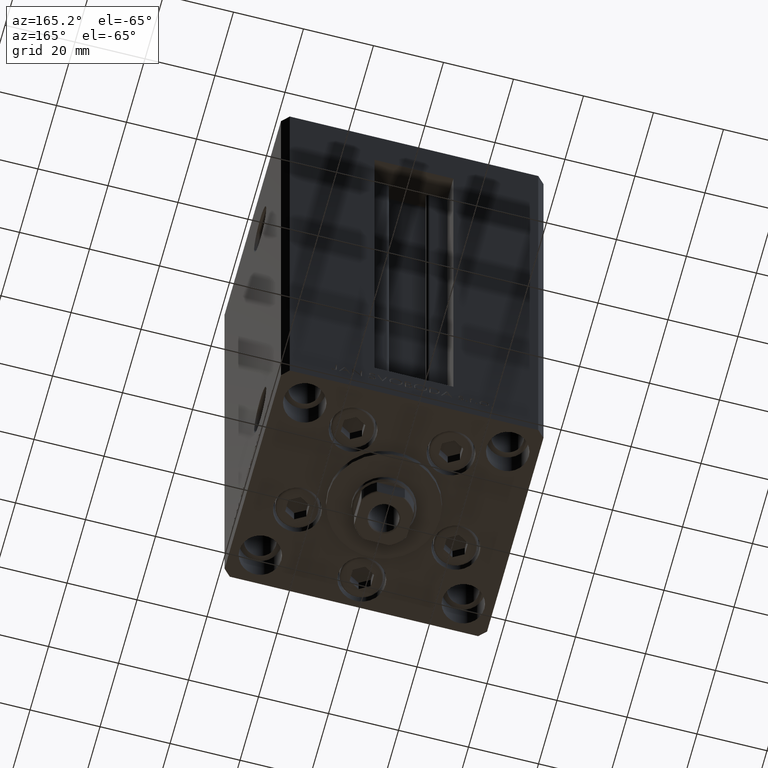
[diagram: clean part render]
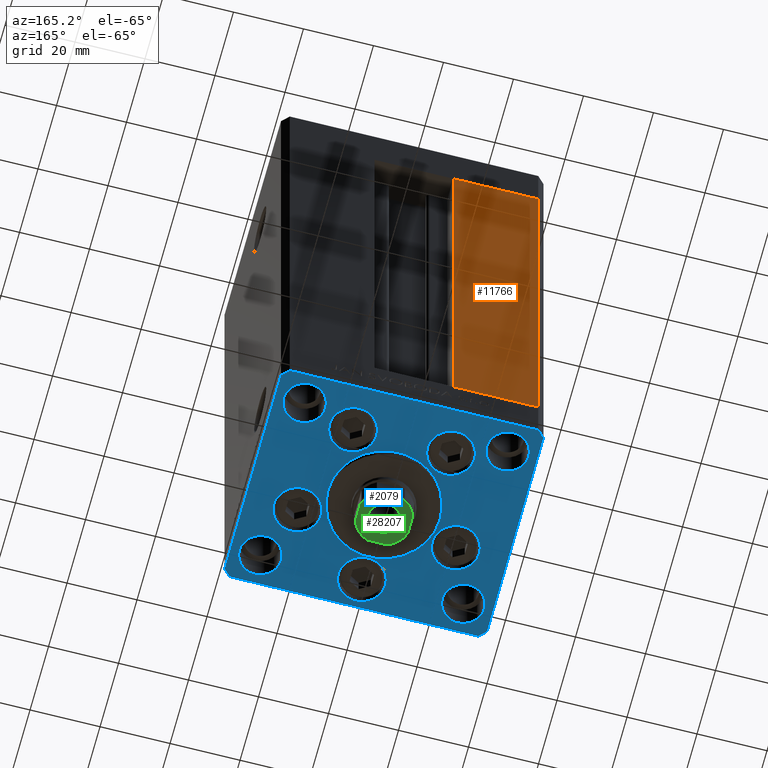
[diagram: same view with three faces highlighted in distinct colors, each labeled with its STEP entity id]
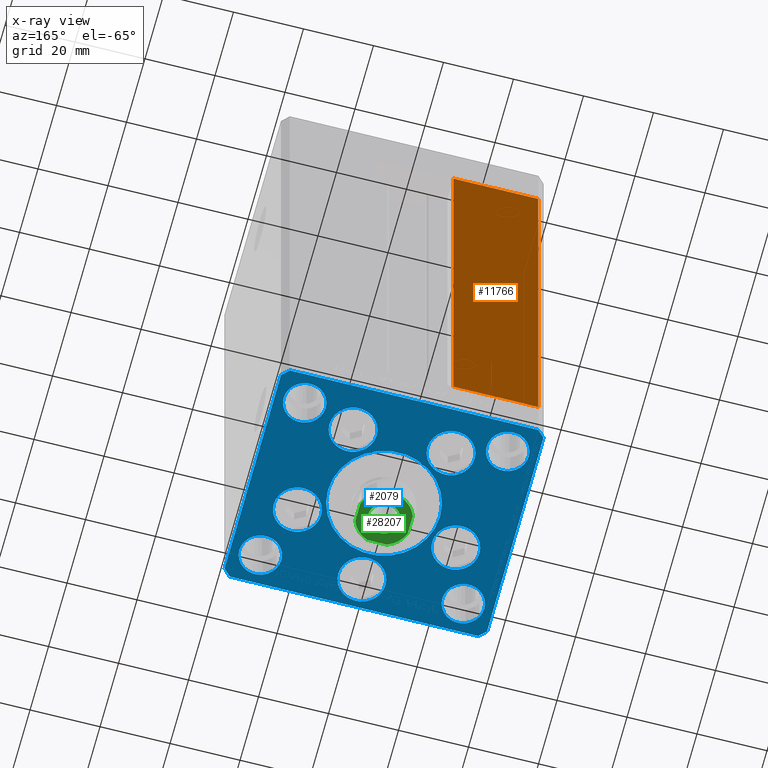
[diagram: x-ray of the same camera — body ghosted, the three highlighted faces saturated]
A machine part, auxiliary view with three faces highlighted in distinct colors.
The next image is the same camera in x-ray (body ghosted, the three faces saturated) — at least one of them is partly hidden behind the body in this view.
Their STEP definitions:

[orange] entity #11766 — the highlighted planar face has unit normal (0, -1, 0).
#976 = CARTESIAN_POINT ( 'NONE',  ( -35.50000000000000000, 32.49999999999999289, 136.0000000000000000 ) ) ;
#1510 = VECTOR ( 'NONE', #20332, 1000.000000000000000 ) ;
#3437 = DIRECTION ( 'NONE',  ( 0.000000000000000000, -0.000000000000000000, -1.000000000000000000 ) ) ;
#3585 = EDGE_CURVE ( 'NONE', #30060, #14903, #32179, .T. ) ;
#3917 = FACE_OUTER_BOUND ( 'NONE', #12458, .T. ) ;
#4185 = CARTESIAN_POINT ( 'NONE',  ( -11.25000000000000178, 32.49999999999999289, 0.000000000000000000 ) ) ;
#4713 = ORIENTED_EDGE ( 'NONE', *, *, #13717, .F. ) ;
#7436 = DIRECTION ( 'NONE',  ( -1.000000000000000000, 0.000000000000000000, 0.000000000000000000 ) ) ;
#7785 = AXIS2_PLACEMENT_3D ( 'NONE', #49284, #45551, #3437 ) ;
#8686 = VECTOR ( 'NONE', #7436, 1000.000000000000000 ) ;
#9582 = CARTESIAN_POINT ( 'NONE',  ( -35.50000000000000000, 32.49999999999999289, 136.0000000000000000 ) ) ;
#10420 = EDGE_CURVE ( 'NONE', #33427, #14903, #33541, .T. ) ;
#11766 = ADVANCED_FACE ( 'NONE', ( #3917 ), #22394, .F. ) ;
#12458 = EDGE_LOOP ( 'NONE', ( #32175, #17046, #20779, #4713 ) ) ;
#13694 = DIRECTION ( 'NONE',  ( -0.000000000000000000, -0.000000000000000000, 1.000000000000000000 ) ) ;
#13717 = EDGE_CURVE ( 'NONE', #33427, #18927, #43742, .T. ) ;
#14903 = VERTEX_POINT ( 'NONE', #49132 ) ;
#17046 = ORIENTED_EDGE ( 'NONE', *, *, #3585, .F. ) ;
#18927 = VERTEX_POINT ( 'NONE', #36374 ) ;
#20332 = DIRECTION ( 'NONE',  ( -0.000000000000000000, -0.000000000000000000, -1.000000000000000000 ) ) ;
#20515 = VECTOR ( 'NONE', #30293, 1000.000000000000000 ) ;
#20779 = ORIENTED_EDGE ( 'NONE', *, *, #40917, .T. ) ;
#22394 = PLANE ( 'NONE',  #7785 ) ;
#30060 = VERTEX_POINT ( 'NONE', #42014 ) ;
#30293 = DIRECTION ( 'NONE',  ( 1.000000000000000000, 0.000000000000000000, 0.000000000000000000 ) ) ;
#30392 = LINE ( 'NONE', #4185, #8686 ) ;
#32175 = ORIENTED_EDGE ( 'NONE', *, *, #10420, .T. ) ;
#32179 = LINE ( 'NONE', #47350, #48881 ) ;
#33427 = VERTEX_POINT ( 'NONE', #976 ) ;
#33541 = LINE ( 'NONE', #48462, #20515 ) ;
#36374 = CARTESIAN_POINT ( 'NONE',  ( -35.50000000000000000, 32.49999999999999289, 0.000000000000000000 ) ) ;
#40917 = EDGE_CURVE ( 'NONE', #30060, #18927, #30392, .T. ) ;
#42014 = CARTESIAN_POINT ( 'NONE',  ( -11.25000000000000178, 32.49999999999999289, 0.000000000000000000 ) ) ;
#43742 = LINE ( 'NONE', #9582, #1510 ) ;
#45551 = DIRECTION ( 'NONE',  ( 0.000000000000000000, -1.000000000000000000, 0.000000000000000000 ) ) ;
#47350 = CARTESIAN_POINT ( 'NONE',  ( -11.25000000000000178, 32.49999999999999289, 0.000000000000000000 ) ) ;
#48462 = CARTESIAN_POINT ( 'NONE',  ( -11.25000000000000178, 32.49999999999999289, 136.0000000000000000 ) ) ;
#48881 = VECTOR ( 'NONE', #13694, 1000.000000000000000 ) ;
#49132 = CARTESIAN_POINT ( 'NONE',  ( -11.25000000000000178, 32.49999999999999289, 136.0000000000000000 ) ) ;
#49284 = CARTESIAN_POINT ( 'NONE',  ( -11.25000000000000178, 32.49999999999999289, 136.0000000000000000 ) ) ;

[blue] entity #2079 — the highlighted planar face has unit normal (0, 0, -1).
#3 = CARTESIAN_POINT ( 'NONE',  ( -29.37741699796953654, -8.000000000000000000, 0.000000000000000000 ) ) ;
#57 = EDGE_CURVE ( 'NONE', #30568, #45487, #12143, .T. ) ;
#137 = CARTESIAN_POINT ( 'NONE',  ( -29.00000000000000000, -23.99999999999999645, 0.000000000000000000 ) ) ;
#766 = CARTESIAN_POINT ( 'NONE',  ( -35.50000000000000711, 32.49999999999997868, 0.000000000000000000 ) ) ;
#913 = VERTEX_POINT ( 'NONE', #26544 ) ;
#1093 = ORIENTED_EDGE ( 'NONE', *, *, #9854, .F. ) ;
#1185 = EDGE_LOOP ( 'NONE', ( #19488, #24297 ) ) ;
#1286 = VERTEX_POINT ( 'NONE', #33705 ) ;
#1288 = VERTEX_POINT ( 'NONE', #18974 ) ;
#1305 = EDGE_CURVE ( 'NONE', #23541, #7109, #32872, .T. ) ;
#1608 = VERTEX_POINT ( 'NONE', #35088 ) ;
#1704 = EDGE_LOOP ( 'NONE', ( #16156, #4351 ) ) ;
#1811 = DIRECTION ( 'NONE',  ( 0.000000000000000000, 0.000000000000000000, 1.000000000000000000 ) ) ;
#1851 = CIRCLE ( 'NONE', #32893, 6.749999999999999112 ) ;
#1856 = DIRECTION ( 'NONE',  ( 1.000000000000000000, 1.172770800660376149E-15, 0.000000000000000000 ) ) ;
#1914 = EDGE_LOOP ( 'NONE', ( #18090, #2160 ) ) ;
#2079 = ADVANCED_FACE ( 'NONE', ( #2471, #10189, #21672, #48548, #37360, #17414, #29400, #40600, #14406, #33140, #28916 ), #48800, .T. ) ;
#2084 = CARTESIAN_POINT ( 'NONE',  ( 22.62741699796953299, -8.000000000000000000, 0.000000000000000000 ) ) ;
#2152 = ORIENTED_EDGE ( 'NONE', *, *, #19028, .T. ) ;
#2160 = ORIENTED_EDGE ( 'NONE', *, *, #5472, .F. ) ;
#2187 = LINE ( 'NONE', #17141, #33506 ) ;
#2193 = CARTESIAN_POINT ( 'NONE',  ( 6.750000000001552536, -24.00000000000001066, 0.000000000000000000 ) ) ;
#2401 = VERTEX_POINT ( 'NONE', #18535 ) ;
#2471 = FACE_BOUND ( 'NONE', #42704, .T. ) ;
#2960 = CARTESIAN_POINT ( 'NONE',  ( 0.000000000000000000, 0.000000000000000000, 0.000000000000000000 ) ) ;
#3112 = VECTOR ( 'NONE', #22380, 1000.000000000000000 ) ;
#3604 = ORIENTED_EDGE ( 'NONE', *, *, #21358, .F. ) ;
#3610 = VERTEX_POINT ( 'NONE', #40621 ) ;
#3777 = CARTESIAN_POINT ( 'NONE',  ( 29.37741699796954364, -8.000000000000000000, 0.000000000000000000 ) ) ;
#3956 = EDGE_CURVE ( 'NONE', #39484, #2401, #7466, .T. ) ;
#4351 = ORIENTED_EDGE ( 'NONE', *, *, #35870, .F. ) ;
#4483 = EDGE_CURVE ( 'NONE', #10354, #13966, #6681, .T. ) ;
#4797 = EDGE_LOOP ( 'NONE', ( #17139, #26306 ) ) ;
#4833 = CARTESIAN_POINT ( 'NONE',  ( -35.50000000000001421, -32.50000000000000711, 0.000000000000000000 ) ) ;
#4930 = AXIS2_PLACEMENT_3D ( 'NONE', #6645, #6886, #40810 ) ;
#5333 = DIRECTION ( 'NONE',  ( 1.000000000000000000, 0.000000000000000000, 0.000000000000000000 ) ) ;
#5472 = EDGE_CURVE ( 'NONE', #36441, #23390, #45723, .T. ) ;
#5612 = EDGE_LOOP ( 'NONE', ( #3604, #9447 ) ) ;
#5635 = ORIENTED_EDGE ( 'NONE', *, *, #3956, .F. ) ;
#6025 = AXIS2_PLACEMENT_3D ( 'NONE', #49278, #49034, #15128 ) ;
#6147 = CARTESIAN_POINT ( 'NONE',  ( -20.74106857963324302, 19.50000000000000000, 0.000000000000000000 ) ) ;
#6396 = DIRECTION ( 'NONE',  ( 0.000000000000000000, 0.000000000000000000, 1.000000000000000000 ) ) ;
#6645 = CARTESIAN_POINT ( 'NONE',  ( 0.000000000000000000, -6.938893903907228378E-15, 0.000000000000000000 ) ) ;
#6681 = CIRCLE ( 'NONE', #36955, 5.999999999999998224 ) ;
#6762 = EDGE_LOOP ( 'NONE', ( #5635, #18833 ) ) ;
#6886 = DIRECTION ( 'NONE',  ( 0.000000000000000000, 0.000000000000000000, 1.000000000000000000 ) ) ;
#7109 = VERTEX_POINT ( 'NONE', #22088 ) ;
#7320 = AXIS2_PLACEMENT_3D ( 'NONE', #47599, #24957, #43399 ) ;
#7324 = CARTESIAN_POINT ( 'NONE',  ( 29.00000000000000355, -23.99999999999999645, 0.000000000000000000 ) ) ;
#7380 = CARTESIAN_POINT ( 'NONE',  ( -37.50000000000000000, -30.50000000000004263, 0.000000000000000000 ) ) ;
#7466 = CIRCLE ( 'NONE', #32972, 6.750000000000009770 ) ;
#7668 = CIRCLE ( 'NONE', #34741, 6.750000000000000000 ) ;
#7795 = DIRECTION ( 'NONE',  ( 0.000000000000000000, 0.000000000000000000, 1.000000000000000000 ) ) ;
#8565 = CIRCLE ( 'NONE', #46785, 6.000000000000001776 ) ;
#8876 = VERTEX_POINT ( 'NONE', #35715 ) ;
#9331 = DIRECTION ( 'NONE',  ( 0.000000000000000000, 0.000000000000000000, 1.000000000000000000 ) ) ;
#9434 = DIRECTION ( 'NONE',  ( 0.000000000000000000, 0.000000000000000000, 1.000000000000000000 ) ) ;
#9447 = ORIENTED_EDGE ( 'NONE', *, *, #13005, .F. ) ;
#9522 = ORIENTED_EDGE ( 'NONE', *, *, #31023, .T. ) ;
#9587 = VERTEX_POINT ( 'NONE', #17741 ) ;
#9591 = EDGE_CURVE ( 'NONE', #8876, #9951, #18126, .T. ) ;
#9666 = EDGE_LOOP ( 'NONE', ( #39569, #36178 ) ) ;
#9854 = EDGE_CURVE ( 'NONE', #1608, #12509, #27687, .T. ) ;
#9951 = VERTEX_POINT ( 'NONE', #19180 ) ;
#10152 = CARTESIAN_POINT ( 'NONE',  ( -22.62741699796953299, -8.000000000000000000, 0.000000000000000000 ) ) ;
#10189 = FACE_BOUND ( 'NONE', #1704, .T. ) ;
#10354 = VERTEX_POINT ( 'NONE', #26811 ) ;
#11006 = AXIS2_PLACEMENT_3D ( 'NONE', #11790, #7795, #27021 ) ;
#11567 = CARTESIAN_POINT ( 'NONE',  ( 35.50000000000000000, 32.49999999999999289, 0.000000000000000000 ) ) ;
#11638 = DIRECTION ( 'NONE',  ( 0.000000000000000000, 0.000000000000000000, 1.000000000000000000 ) ) ;
#11674 = EDGE_LOOP ( 'NONE', ( #38031, #35492 ) ) ;
#11707 = EDGE_CURVE ( 'NONE', #7109, #23541, #8565, .T. ) ;
#11738 = CARTESIAN_POINT ( 'NONE',  ( -29.00000000000000000, 24.00000000000000711, 0.000000000000000000 ) ) ;
#11761 = VERTEX_POINT ( 'NONE', #18889 ) ;
#11790 = CARTESIAN_POINT ( 'NONE',  ( -13.99106857963324124, 19.50000000000000000, 0.000000000000000000 ) ) ;
#12143 = CIRCLE ( 'NONE', #18508, 6.749999999999997335 ) ;
#12509 = VERTEX_POINT ( 'NONE', #38452 ) ;
#12596 = CIRCLE ( 'NONE', #48405, 6.750000000001552536 ) ;
#12698 = ORIENTED_EDGE ( 'NONE', *, *, #48429, .T. ) ;
#13005 = EDGE_CURVE ( 'NONE', #14530, #32529, #12596, .T. ) ;
#13100 = AXIS2_PLACEMENT_3D ( 'NONE', #10152, #18361, #18115 ) ;
#13138 = EDGE_CURVE ( 'NONE', #35789, #18099, #37271, .T. ) ;
#13767 = CARTESIAN_POINT ( 'NONE',  ( 35.50000000000001421, -32.49999999999992184, 0.000000000000000000 ) ) ;
#13966 = VERTEX_POINT ( 'NONE', #43683 ) ;
#13994 = DIRECTION ( 'NONE',  ( 1.000000000000000000, 0.000000000000000000, 0.000000000000000000 ) ) ;
#14072 = DIRECTION ( 'NONE',  ( 1.000000000000000000, 0.000000000000000000, 0.000000000000000000 ) ) ;
#14087 = CARTESIAN_POINT ( 'NONE',  ( -7.241068579633241242, 19.50000000000000000, 0.000000000000000000 ) ) ;
#14406 = FACE_BOUND ( 'NONE', #9666, .T. ) ;
#14530 = VERTEX_POINT ( 'NONE', #19662 ) ;
#15059 = CARTESIAN_POINT ( 'NONE',  ( -37.50000000000001421, 30.50000000000000000, 0.000000000000000000 ) ) ;
#15128 = DIRECTION ( 'NONE',  ( 1.000000000000000000, 0.000000000000000000, 0.000000000000000000 ) ) ;
#15324 = DIRECTION ( 'NONE',  ( 0.000000000000000000, 0.000000000000000000, 1.000000000000000000 ) ) ;
#15811 = VERTEX_POINT ( 'NONE', #44153 ) ;
#15812 = DIRECTION ( 'NONE',  ( 1.000000000000000000, 0.000000000000000000, 0.000000000000000000 ) ) ;
#15884 = CARTESIAN_POINT ( 'NONE',  ( 29.00000000000000355, -23.99999999999999645, 0.000000000000000000 ) ) ;
#16156 = ORIENTED_EDGE ( 'NONE', *, *, #13138, .F. ) ;
#16544 = DIRECTION ( 'NONE',  ( 0.000000000000000000, 0.000000000000000000, 1.000000000000000000 ) ) ;
#16872 = ORIENTED_EDGE ( 'NONE', *, *, #30080, .T. ) ;
#17139 = ORIENTED_EDGE ( 'NONE', *, *, #4483, .F. ) ;
#17141 = CARTESIAN_POINT ( 'NONE',  ( 35.50000000000000000, 32.49999999999999289, 0.000000000000000000 ) ) ;
#17414 = FACE_BOUND ( 'NONE', #1914, .T. ) ;
#17741 = CARTESIAN_POINT ( 'NONE',  ( -35.50000000000001421, -32.50000000000000711, 0.000000000000000000 ) ) ;
#17822 = CARTESIAN_POINT ( 'NONE',  ( 13.99106857963324124, 19.50000000000000000, 0.000000000000000000 ) ) ;
#18090 = ORIENTED_EDGE ( 'NONE', *, *, #28223, .F. ) ;
#18099 = VERTEX_POINT ( 'NONE', #6147 ) ;
#18115 = DIRECTION ( 'NONE',  ( 1.000000000000000000, 0.000000000000000000, 0.000000000000000000 ) ) ;
#18126 = CIRCLE ( 'NONE', #24511, 16.00000000000000355 ) ;
#18185 = VECTOR ( 'NONE', #22612, 1000.000000000000000 ) ;
#18231 = DIRECTION ( 'NONE',  ( 1.000000000000000000, 0.000000000000000000, 0.000000000000000000 ) ) ;
#18361 = DIRECTION ( 'NONE',  ( 0.000000000000000000, 0.000000000000000000, 1.000000000000000000 ) ) ;
#18437 = EDGE_CURVE ( 'NONE', #11761, #913, #29807, .T. ) ;
#18508 = AXIS2_PLACEMENT_3D ( 'NONE', #39010, #34793, #15812 ) ;
#18535 = CARTESIAN_POINT ( 'NONE',  ( 15.87741699796952410, -8.000000000000000000, 0.000000000000000000 ) ) ;
#18833 = ORIENTED_EDGE ( 'NONE', *, *, #36005, .F. ) ;
#18889 = CARTESIAN_POINT ( 'NONE',  ( -37.50000000000001421, 30.50000000000000000, 0.000000000000000000 ) ) ;
#18974 = CARTESIAN_POINT ( 'NONE',  ( 37.50000000000000711, 30.50000000000001421, 0.000000000000000000 ) ) ;
#19028 = EDGE_CURVE ( 'NONE', #1288, #46202, #30617, .T. ) ;
#19180 = CARTESIAN_POINT ( 'NONE',  ( -16.00000000000000355, -6.938893903907228378E-15, 0.000000000000000000 ) ) ;
#19319 = DIRECTION ( 'NONE',  ( 0.000000000000000000, 0.000000000000000000, 1.000000000000000000 ) ) ;
#19488 = ORIENTED_EDGE ( 'NONE', *, *, #57, .F. ) ;
#19662 = CARTESIAN_POINT ( 'NONE',  ( -6.750000000001552536, -24.00000000000001066, 0.000000000000000000 ) ) ;
#19738 = CARTESIAN_POINT ( 'NONE',  ( -29.00000000000000000, 24.00000000000000711, 0.000000000000000000 ) ) ;
#20434 = AXIS2_PLACEMENT_3D ( 'NONE', #2084, #16544, #39238 ) ;
#20526 = EDGE_CURVE ( 'NONE', #1286, #3610, #21619, .T. ) ;
#20662 = EDGE_LOOP ( 'NONE', ( #31621, #16872, #26299, #36362, #2152, #12698, #9522, #21549 ) ) ;
#20668 = CIRCLE ( 'NONE', #49319, 6.000000000000001776 ) ;
#21358 = EDGE_CURVE ( 'NONE', #32529, #14530, #21656, .T. ) ;
#21549 = ORIENTED_EDGE ( 'NONE', *, *, #18437, .T. ) ;
#21619 = CIRCLE ( 'NONE', #27992, 6.000000000000001776 ) ;
#21656 = CIRCLE ( 'NONE', #7320, 6.750000000001552536 ) ;
#21672 = FACE_BOUND ( 'NONE', #1185, .T. ) ;
#21881 = CARTESIAN_POINT ( 'NONE',  ( 22.62741699796953299, -8.000000000000000000, 0.000000000000000000 ) ) ;
#22042 = DIRECTION ( 'NONE',  ( 1.000000000000000000, 0.000000000000000000, 0.000000000000000000 ) ) ;
#22088 = CARTESIAN_POINT ( 'NONE',  ( -35.00000000000000000, 24.00000000000000711, 0.000000000000000000 ) ) ;
#22380 = DIRECTION ( 'NONE',  ( 0.000000000000000000, 1.000000000000000000, 0.000000000000000000 ) ) ;
#22386 = LINE ( 'NONE', #38073, #46998 ) ;
#22562 = DIRECTION ( 'NONE',  ( 1.000000000000000000, 0.000000000000000000, 0.000000000000000000 ) ) ;
#22569 = DIRECTION ( 'NONE',  ( 0.000000000000000000, 0.000000000000000000, 1.000000000000000000 ) ) ;
#22612 = DIRECTION ( 'NONE',  ( 0.7071067811865512365, -0.7071067811865439090, 0.000000000000000000 ) ) ;
#22627 = DIRECTION ( 'NONE',  ( 1.000000000000000000, 0.000000000000000000, 0.000000000000000000 ) ) ;
#23390 = VERTEX_POINT ( 'NONE', #43474 ) ;
#23541 = VERTEX_POINT ( 'NONE', #45912 ) ;
#23547 = DIRECTION ( 'NONE',  ( 1.000000000000000000, 0.000000000000000000, 0.000000000000000000 ) ) ;
#24297 = ORIENTED_EDGE ( 'NONE', *, *, #46836, .F. ) ;
#24511 = AXIS2_PLACEMENT_3D ( 'NONE', #44172, #1811, #13994 ) ;
#24583 = EDGE_LOOP ( 'NONE', ( #1093, #39161 ) ) ;
#24655 = AXIS2_PLACEMENT_3D ( 'NONE', #7324, #41739, #22562 ) ;
#24680 = AXIS2_PLACEMENT_3D ( 'NONE', #17822, #22569, #14072 ) ;
#24957 = DIRECTION ( 'NONE',  ( 0.000000000000000000, 0.000000000000000000, 1.000000000000000000 ) ) ;
#26278 = EDGE_CURVE ( 'NONE', #9951, #8876, #47133, .T. ) ;
#26299 = ORIENTED_EDGE ( 'NONE', *, *, #47931, .T. ) ;
#26306 = ORIENTED_EDGE ( 'NONE', *, *, #42203, .F. ) ;
#26325 = VECTOR ( 'NONE', #41256, 1000.000000000000000 ) ;
#26387 = CARTESIAN_POINT ( 'NONE',  ( 37.50000000000000711, 30.50000000000001421, 0.000000000000000000 ) ) ;
#26544 = CARTESIAN_POINT ( 'NONE',  ( -37.50000000000000000, -30.50000000000004263, 0.000000000000000000 ) ) ;
#26811 = CARTESIAN_POINT ( 'NONE',  ( 35.00000000000000000, -23.99999999999999645, 0.000000000000000000 ) ) ;
#26916 = AXIS2_PLACEMENT_3D ( 'NONE', #48048, #9434, #34152 ) ;
#27021 = DIRECTION ( 'NONE',  ( 1.000000000000000000, 0.000000000000000000, 0.000000000000000000 ) ) ;
#27687 = CIRCLE ( 'NONE', #26916, 6.000000000000001776 ) ;
#27781 = CARTESIAN_POINT ( 'NONE',  ( 7.241068579633242130, 19.50000000000000000, 0.000000000000000000 ) ) ;
#27992 = AXIS2_PLACEMENT_3D ( 'NONE', #137, #15324, #5333 ) ;
#28223 = EDGE_CURVE ( 'NONE', #23390, #36441, #1851, .T. ) ;
#28530 = LINE ( 'NONE', #4833, #48049 ) ;
#28542 = CARTESIAN_POINT ( 'NONE',  ( -22.62741699796953299, -8.000000000000000000, 0.000000000000000000 ) ) ;
#28916 = FACE_OUTER_BOUND ( 'NONE', #20662, .T. ) ;
#29400 = FACE_BOUND ( 'NONE', #24583, .T. ) ;
#29733 = AXIS2_PLACEMENT_3D ( 'NONE', #2960, #44831, #48306 ) ;
#29807 = LINE ( 'NONE', #15059, #26325 ) ;
#30080 = EDGE_CURVE ( 'NONE', #9587, #39251, #28530, .T. ) ;
#30568 = VERTEX_POINT ( 'NONE', #39380 ) ;
#30617 = LINE ( 'NONE', #26387, #46212 ) ;
#31023 = EDGE_CURVE ( 'NONE', #43777, #11761, #48746, .T. ) ;
#31055 = CIRCLE ( 'NONE', #24680, 6.749999999999997335 ) ;
#31133 = DIRECTION ( 'NONE',  ( 0.000000000000000000, 0.000000000000000000, 1.000000000000000000 ) ) ;
#31534 = CIRCLE ( 'NONE', #6025, 6.000000000000001776 ) ;
#31621 = ORIENTED_EDGE ( 'NONE', *, *, #43246, .T. ) ;
#31712 = DIRECTION ( 'NONE',  ( 0.000000000000000000, 0.000000000000000000, 1.000000000000000000 ) ) ;
#32529 = VERTEX_POINT ( 'NONE', #2193 ) ;
#32773 = DIRECTION ( 'NONE',  ( 0.000000000000000000, 0.000000000000000000, 1.000000000000000000 ) ) ;
#32872 = CIRCLE ( 'NONE', #44807, 6.000000000000001776 ) ;
#32893 = AXIS2_PLACEMENT_3D ( 'NONE', #28542, #9331, #47693 ) ;
#32972 = AXIS2_PLACEMENT_3D ( 'NONE', #21881, #6396, #49007 ) ;
#33140 = FACE_BOUND ( 'NONE', #4797, .T. ) ;
#33506 = VECTOR ( 'NONE', #47781, 1000.000000000000000 ) ;
#33705 = CARTESIAN_POINT ( 'NONE',  ( -35.00000000000000000, -23.99999999999999645, 0.000000000000000000 ) ) ;
#34152 = DIRECTION ( 'NONE',  ( 1.000000000000000000, 0.000000000000000000, 0.000000000000000000 ) ) ;
#34741 = AXIS2_PLACEMENT_3D ( 'NONE', #38509, #19319, #23547 ) ;
#34793 = DIRECTION ( 'NONE',  ( 0.000000000000000000, 0.000000000000000000, 1.000000000000000000 ) ) ;
#34949 = DIRECTION ( 'NONE',  ( 1.000000000000000000, 0.000000000000000000, 0.000000000000000000 ) ) ;
#35088 = CARTESIAN_POINT ( 'NONE',  ( 35.00000000000000000, 24.00000000000000355, 0.000000000000000000 ) ) ;
#35387 = EDGE_CURVE ( 'NONE', #12509, #1608, #31534, .T. ) ;
#35492 = ORIENTED_EDGE ( 'NONE', *, *, #11707, .F. ) ;
#35715 = CARTESIAN_POINT ( 'NONE',  ( 16.00000000000000355, -4.979459025271462852E-15, 0.000000000000000000 ) ) ;
#35789 = VERTEX_POINT ( 'NONE', #14087 ) ;
#35870 = EDGE_CURVE ( 'NONE', #18099, #35789, #7668, .T. ) ;
#36005 = EDGE_CURVE ( 'NONE', #2401, #39484, #45075, .T. ) ;
#36178 = ORIENTED_EDGE ( 'NONE', *, *, #20526, .F. ) ;
#36362 = ORIENTED_EDGE ( 'NONE', *, *, #40118, .T. ) ;
#36441 = VERTEX_POINT ( 'NONE', #3 ) ;
#36955 = AXIS2_PLACEMENT_3D ( 'NONE', #15884, #31133, #42581 ) ;
#37271 = CIRCLE ( 'NONE', #11006, 6.750000000000000000 ) ;
#37302 = DIRECTION ( 'NONE',  ( -0.7071067811865524577, -0.7071067811865426878, 0.000000000000000000 ) ) ;
#37360 = FACE_BOUND ( 'NONE', #5612, .T. ) ;
#38031 = ORIENTED_EDGE ( 'NONE', *, *, #1305, .F. ) ;
#38073 = CARTESIAN_POINT ( 'NONE',  ( 35.50000000000001421, -32.49999999999992184, 0.000000000000000000 ) ) ;
#38452 = CARTESIAN_POINT ( 'NONE',  ( 23.00000000000000000, 24.00000000000000355, 0.000000000000000000 ) ) ;
#38509 = CARTESIAN_POINT ( 'NONE',  ( -13.99106857963324124, 19.50000000000000000, 0.000000000000000000 ) ) ;
#38565 = DIRECTION ( 'NONE',  ( 0.7071067811865463515, 0.7071067811865487940, 0.000000000000000000 ) ) ;
#39010 = CARTESIAN_POINT ( 'NONE',  ( 13.99106857963324124, 19.50000000000000000, 0.000000000000000000 ) ) ;
#39161 = ORIENTED_EDGE ( 'NONE', *, *, #35387, .F. ) ;
#39238 = DIRECTION ( 'NONE',  ( 1.000000000000000000, 0.000000000000000000, 0.000000000000000000 ) ) ;
#39251 = VERTEX_POINT ( 'NONE', #13767 ) ;
#39380 = CARTESIAN_POINT ( 'NONE',  ( 20.74106857963323947, 19.50000000000000000, 0.000000000000000000 ) ) ;
#39484 = VERTEX_POINT ( 'NONE', #3777 ) ;
#39569 = ORIENTED_EDGE ( 'NONE', *, *, #45076, .F. ) ;
#40118 = EDGE_CURVE ( 'NONE', #15811, #1288, #42302, .T. ) ;
#40138 = VECTOR ( 'NONE', #37302, 1000.000000000000000 ) ;
#40360 = ORIENTED_EDGE ( 'NONE', *, *, #9591, .F. ) ;
#40600 = FACE_BOUND ( 'NONE', #11674, .T. ) ;
#40621 = CARTESIAN_POINT ( 'NONE',  ( -23.00000000000000000, -23.99999999999999645, 0.000000000000000000 ) ) ;
#40810 = DIRECTION ( 'NONE',  ( 1.000000000000000000, 0.000000000000000000, 0.000000000000000000 ) ) ;
#41256 = DIRECTION ( 'NONE',  ( 2.275047181608926165E-16, -1.000000000000000000, 0.000000000000000000 ) ) ;
#41313 = CARTESIAN_POINT ( 'NONE',  ( 37.50000000000000711, -30.49999999999992895, 0.000000000000000000 ) ) ;
#41327 = DIRECTION ( 'NONE',  ( -0.7071067811865524577, 0.7071067811865426878, 0.000000000000000000 ) ) ;
#41471 = CARTESIAN_POINT ( 'NONE',  ( 0.000000000000000000, -24.00000000000001066, 0.000000000000000000 ) ) ;
#41544 = LINE ( 'NONE', #7380, #18185 ) ;
#41739 = DIRECTION ( 'NONE',  ( 0.000000000000000000, 0.000000000000000000, 1.000000000000000000 ) ) ;
#42203 = EDGE_CURVE ( 'NONE', #13966, #10354, #46114, .T. ) ;
#42302 = LINE ( 'NONE', #41313, #3112 ) ;
#42581 = DIRECTION ( 'NONE',  ( 1.000000000000000000, 0.000000000000000000, 0.000000000000000000 ) ) ;
#42704 = EDGE_LOOP ( 'NONE', ( #49016, #40360 ) ) ;
#43246 = EDGE_CURVE ( 'NONE', #913, #9587, #41544, .T. ) ;
#43399 = DIRECTION ( 'NONE',  ( 1.000000000000000000, 0.000000000000000000, 0.000000000000000000 ) ) ;
#43474 = CARTESIAN_POINT ( 'NONE',  ( -15.87741699796953476, -8.000000000000000000, 0.000000000000000000 ) ) ;
#43683 = CARTESIAN_POINT ( 'NONE',  ( 23.00000000000000711, -23.99999999999999645, 0.000000000000000000 ) ) ;
#43777 = VERTEX_POINT ( 'NONE', #766 ) ;
#44153 = CARTESIAN_POINT ( 'NONE',  ( 37.50000000000000711, -30.49999999999992895, 0.000000000000000000 ) ) ;
#44172 = CARTESIAN_POINT ( 'NONE',  ( 0.000000000000000000, -6.938893903907228378E-15, 0.000000000000000000 ) ) ;
#44807 = AXIS2_PLACEMENT_3D ( 'NONE', #11738, #48628, #18231 ) ;
#44831 = DIRECTION ( 'NONE',  ( -0.000000000000000000, 0.000000000000000000, 1.000000000000000000 ) ) ;
#45049 = CARTESIAN_POINT ( 'NONE',  ( -29.00000000000000000, -23.99999999999999645, 0.000000000000000000 ) ) ;
#45075 = CIRCLE ( 'NONE', #20434, 6.750000000000009770 ) ;
#45076 = EDGE_CURVE ( 'NONE', #3610, #1286, #20668, .T. ) ;
#45487 = VERTEX_POINT ( 'NONE', #27781 ) ;
#45723 = CIRCLE ( 'NONE', #13100, 6.749999999999999112 ) ;
#45912 = CARTESIAN_POINT ( 'NONE',  ( -23.00000000000000000, 24.00000000000000711, 0.000000000000000000 ) ) ;
#46114 = CIRCLE ( 'NONE', #24655, 5.999999999999998224 ) ;
#46202 = VERTEX_POINT ( 'NONE', #11567 ) ;
#46212 = VECTOR ( 'NONE', #41327, 1000.000000000000000 ) ;
#46785 = AXIS2_PLACEMENT_3D ( 'NONE', #19738, #31712, #34949 ) ;
#46836 = EDGE_CURVE ( 'NONE', #45487, #30568, #31055, .T. ) ;
#46998 = VECTOR ( 'NONE', #38565, 1000.000000000000000 ) ;
#47133 = CIRCLE ( 'NONE', #4930, 16.00000000000000355 ) ;
#47599 = CARTESIAN_POINT ( 'NONE',  ( 0.000000000000000000, -24.00000000000001066, 0.000000000000000000 ) ) ;
#47693 = DIRECTION ( 'NONE',  ( 1.000000000000000000, 0.000000000000000000, 0.000000000000000000 ) ) ;
#47781 = DIRECTION ( 'NONE',  ( -1.000000000000000000, -1.954618001100627573E-16, 0.000000000000000000 ) ) ;
#47931 = EDGE_CURVE ( 'NONE', #39251, #15811, #22386, .T. ) ;
#48048 = CARTESIAN_POINT ( 'NONE',  ( 29.00000000000000000, 24.00000000000000355, 0.000000000000000000 ) ) ;
#48049 = VECTOR ( 'NONE', #1856, 1000.000000000000000 ) ;
#48306 = DIRECTION ( 'NONE',  ( 1.000000000000000000, 0.000000000000000000, 0.000000000000000000 ) ) ;
#48405 = AXIS2_PLACEMENT_3D ( 'NONE', #41471, #32773, #22042 ) ;
#48429 = EDGE_CURVE ( 'NONE', #46202, #43777, #2187, .T. ) ;
#48494 = CARTESIAN_POINT ( 'NONE',  ( -35.50000000000000711, 32.49999999999997868, 0.000000000000000000 ) ) ;
#48548 = FACE_BOUND ( 'NONE', #6762, .T. ) ;
#48628 = DIRECTION ( 'NONE',  ( 0.000000000000000000, 0.000000000000000000, 1.000000000000000000 ) ) ;
#48746 = LINE ( 'NONE', #48494, #40138 ) ;
#48800 = PLANE ( 'NONE',  #29733 ) ;
#49007 = DIRECTION ( 'NONE',  ( 1.000000000000000000, 0.000000000000000000, 0.000000000000000000 ) ) ;
#49016 = ORIENTED_EDGE ( 'NONE', *, *, #26278, .F. ) ;
#49034 = DIRECTION ( 'NONE',  ( 0.000000000000000000, 0.000000000000000000, 1.000000000000000000 ) ) ;
#49278 = CARTESIAN_POINT ( 'NONE',  ( 29.00000000000000000, 24.00000000000000355, 0.000000000000000000 ) ) ;
#49319 = AXIS2_PLACEMENT_3D ( 'NONE', #45049, #11638, #22627 ) ;

[green] entity #28207 — the highlighted planar face has unit normal (0, 0, -1).
#421 = CARTESIAN_POINT ( 'NONE',  ( 0.000000000000000000, 0.000000000000000000, 148.0000000000000284 ) ) ;
#640 = DIRECTION ( 'NONE',  ( 5.782411586589357392E-17, -1.000000000000000000, 0.000000000000000000 ) ) ;
#647 = CIRCLE ( 'NONE', #29349, 8.000000000000000000 ) ;
#665 = VERTEX_POINT ( 'NONE', #3214 ) ;
#823 = CARTESIAN_POINT ( 'NONE',  ( 0.000000000000000000, 0.000000000000000000, 148.0000000000000284 ) ) ;
#877 = CARTESIAN_POINT ( 'NONE',  ( 0.000000000000000000, 0.000000000000000000, 148.0000000000000284 ) ) ;
#1576 = VECTOR ( 'NONE', #32459, 1000.000000000000000 ) ;
#1796 = CARTESIAN_POINT ( 'NONE',  ( 0.000000000000000000, 0.000000000000000000, 148.0000000000000284 ) ) ;
#3191 = EDGE_CURVE ( 'NONE', #42715, #16011, #11618, .T. ) ;
#3214 = CARTESIAN_POINT ( 'NONE',  ( -4.550000000000012257, 5.572142936120472118E-16, 148.0000000000000284 ) ) ;
#3870 = PLANE ( 'NONE',  #6600 ) ;
#4196 = CARTESIAN_POINT ( 'NONE',  ( -2.783882181415013868, 7.499999999999999112, 148.0000000000000284 ) ) ;
#5681 = CARTESIAN_POINT ( 'NONE',  ( 0.000000000000000000, 0.000000000000000000, 148.0000000000000284 ) ) ;
#5792 = ORIENTED_EDGE ( 'NONE', *, *, #21744, .T. ) ;
#6257 = CIRCLE ( 'NONE', #12641, 8.000000000000000000 ) ;
#6556 = DIRECTION ( 'NONE',  ( 1.156482317317871478E-16, 1.000000000000000000, -0.000000000000000000 ) ) ;
#6600 = AXIS2_PLACEMENT_3D ( 'NONE', #19088, #34306, #43253 ) ;
#6978 = DIRECTION ( 'NONE',  ( 1.000000000000000000, 5.782411586589358625E-17, 0.000000000000000000 ) ) ;
#8568 = EDGE_CURVE ( 'NONE', #12852, #22344, #36505, .T. ) ;
#8588 = DIRECTION ( 'NONE',  ( 1.000000000000000000, 0.000000000000000000, 0.000000000000000000 ) ) ;
#8786 = DIRECTION ( 'NONE',  ( 1.000000000000000000, 0.000000000000000000, 0.000000000000000000 ) ) ;
#10655 = ORIENTED_EDGE ( 'NONE', *, *, #20059, .T. ) ;
#11618 = LINE ( 'NONE', #15586, #45655 ) ;
#11881 = DIRECTION ( 'NONE',  ( 1.000000000000000000, 0.000000000000000000, 0.000000000000000000 ) ) ;
#12641 = AXIS2_PLACEMENT_3D ( 'NONE', #421, #34096, #11881 ) ;
#12788 = EDGE_CURVE ( 'NONE', #22344, #38738, #647, .T. ) ;
#12852 = VERTEX_POINT ( 'NONE', #39262 ) ;
#13364 = ORIENTED_EDGE ( 'NONE', *, *, #40088, .T. ) ;
#14145 = CARTESIAN_POINT ( 'NONE',  ( 2.783882181415008539, -7.500000000000000888, 148.0000000000000284 ) ) ;
#14498 = CIRCLE ( 'NONE', #47908, 8.000000000000000000 ) ;
#14518 = VERTEX_POINT ( 'NONE', #4196 ) ;
#15396 = ORIENTED_EDGE ( 'NONE', *, *, #8568, .T. ) ;
#15586 = CARTESIAN_POINT ( 'NONE',  ( -7.499999999999998224, 7.499999999999999112, 148.0000000000000284 ) ) ;
#15805 = EDGE_CURVE ( 'NONE', #38738, #14518, #39926, .T. ) ;
#16011 = VERTEX_POINT ( 'NONE', #30682 ) ;
#16027 = CIRCLE ( 'NONE', #47839, 4.550000000000012257 ) ;
#16206 = CIRCLE ( 'NONE', #28200, 4.550000000000012257 ) ;
#16404 = ORIENTED_EDGE ( 'NONE', *, *, #21004, .T. ) ;
#16988 = DIRECTION ( 'NONE',  ( 0.000000000000000000, -0.000000000000000000, -1.000000000000000000 ) ) ;
#17476 = CARTESIAN_POINT ( 'NONE',  ( 0.000000000000000000, 0.000000000000000000, 148.0000000000000284 ) ) ;
#19088 = CARTESIAN_POINT ( 'NONE',  ( 0.000000000000000000, 0.000000000000000000, 148.0000000000000284 ) ) ;
#20059 = EDGE_CURVE ( 'NONE', #37239, #35313, #33929, .T. ) ;
#20372 = VERTEX_POINT ( 'NONE', #37788 ) ;
#21004 = EDGE_CURVE ( 'NONE', #665, #20372, #16027, .T. ) ;
#21744 = EDGE_CURVE ( 'NONE', #16011, #37239, #41536, .T. ) ;
#22344 = VERTEX_POINT ( 'NONE', #42910 ) ;
#22559 = EDGE_LOOP ( 'NONE', ( #28376, #16404 ) ) ;
#23553 = ORIENTED_EDGE ( 'NONE', *, *, #12788, .T. ) ;
#25478 = EDGE_LOOP ( 'NONE', ( #32114, #5792, #10655, #13364, #15396, #23553, #29331, #43564 ) ) ;
#25595 = EDGE_CURVE ( 'NONE', #14518, #42715, #14498, .T. ) ;
#25968 = VECTOR ( 'NONE', #6556, 1000.000000000000000 ) ;
#26701 = CARTESIAN_POINT ( 'NONE',  ( -7.499999999999997335, -7.500000000000000888, 148.0000000000000284 ) ) ;
#28200 = AXIS2_PLACEMENT_3D ( 'NONE', #1796, #16988, #28971 ) ;
#28207 = ADVANCED_FACE ( 'NONE', ( #31062, #38035 ), #3870, .T. ) ;
#28376 = ORIENTED_EDGE ( 'NONE', *, *, #30405, .T. ) ;
#28443 = CARTESIAN_POINT ( 'NONE',  ( 2.783882181415012980, 7.500000000000000000, 148.0000000000000284 ) ) ;
#28971 = DIRECTION ( 'NONE',  ( 1.000000000000000000, 0.000000000000000000, 0.000000000000000000 ) ) ;
#29195 = CARTESIAN_POINT ( 'NONE',  ( -7.499999999999998224, 2.783882181415015644, 148.0000000000000284 ) ) ;
#29331 = ORIENTED_EDGE ( 'NONE', *, *, #15805, .T. ) ;
#29349 = AXIS2_PLACEMENT_3D ( 'NONE', #877, #31304, #8588 ) ;
#30405 = EDGE_CURVE ( 'NONE', #20372, #665, #16206, .T. ) ;
#30682 = CARTESIAN_POINT ( 'NONE',  ( -7.499999999999998224, -2.783882181415016088, 148.0000000000000284 ) ) ;
#31062 = FACE_BOUND ( 'NONE', #22559, .T. ) ;
#31160 = VECTOR ( 'NONE', #6978, 1000.000000000000000 ) ;
#31304 = DIRECTION ( 'NONE',  ( -0.000000000000000000, 0.000000000000000000, 1.000000000000000000 ) ) ;
#31495 = DIRECTION ( 'NONE',  ( -0.000000000000000000, 0.000000000000000000, 1.000000000000000000 ) ) ;
#32114 = ORIENTED_EDGE ( 'NONE', *, *, #3191, .T. ) ;
#32459 = DIRECTION ( 'NONE',  ( -1.000000000000000000, -5.782411586589357392E-17, -0.000000000000000000 ) ) ;
#33929 = LINE ( 'NONE', #26701, #31160 ) ;
#34096 = DIRECTION ( 'NONE',  ( -0.000000000000000000, 0.000000000000000000, 1.000000000000000000 ) ) ;
#34306 = DIRECTION ( 'NONE',  ( -0.000000000000000000, 0.000000000000000000, 1.000000000000000000 ) ) ;
#35313 = VERTEX_POINT ( 'NONE', #14145 ) ;
#36197 = CARTESIAN_POINT ( 'NONE',  ( -7.499999999999998224, 7.499999999999999112, 148.0000000000000284 ) ) ;
#36505 = LINE ( 'NONE', #48182, #25968 ) ;
#36939 = DIRECTION ( 'NONE',  ( 1.000000000000000000, 0.000000000000000000, 0.000000000000000000 ) ) ;
#37239 = VERTEX_POINT ( 'NONE', #41892 ) ;
#37788 = CARTESIAN_POINT ( 'NONE',  ( 4.550000000000012257, 0.000000000000000000, 148.0000000000000284 ) ) ;
#38035 = FACE_OUTER_BOUND ( 'NONE', #25478, .T. ) ;
#38738 = VERTEX_POINT ( 'NONE', #28443 ) ;
#39262 = CARTESIAN_POINT ( 'NONE',  ( 7.500000000000000888, -2.783882181415009427, 148.0000000000000284 ) ) ;
#39853 = DIRECTION ( 'NONE',  ( 1.000000000000000000, 0.000000000000000000, 0.000000000000000000 ) ) ;
#39926 = LINE ( 'NONE', #36197, #1576 ) ;
#40088 = EDGE_CURVE ( 'NONE', #35313, #12852, #6257, .T. ) ;
#41536 = CIRCLE ( 'NONE', #45508, 8.000000000000000000 ) ;
#41892 = CARTESIAN_POINT ( 'NONE',  ( -2.783882181415010315, -7.500000000000000888, 148.0000000000000284 ) ) ;
#42715 = VERTEX_POINT ( 'NONE', #29195 ) ;
#42910 = CARTESIAN_POINT ( 'NONE',  ( 7.500000000000000888, 2.783882181415007206, 148.0000000000000284 ) ) ;
#43253 = DIRECTION ( 'NONE',  ( 1.000000000000000000, 0.000000000000000000, 0.000000000000000000 ) ) ;
#43564 = ORIENTED_EDGE ( 'NONE', *, *, #25595, .T. ) ;
#43665 = DIRECTION ( 'NONE',  ( 0.000000000000000000, -0.000000000000000000, -1.000000000000000000 ) ) ;
#45508 = AXIS2_PLACEMENT_3D ( 'NONE', #5681, #46813, #39853 ) ;
#45655 = VECTOR ( 'NONE', #640, 1000.000000000000000 ) ;
#46813 = DIRECTION ( 'NONE',  ( -0.000000000000000000, 0.000000000000000000, 1.000000000000000000 ) ) ;
#47839 = AXIS2_PLACEMENT_3D ( 'NONE', #17476, #43665, #36939 ) ;
#47908 = AXIS2_PLACEMENT_3D ( 'NONE', #823, #31495, #8786 ) ;
#48182 = CARTESIAN_POINT ( 'NONE',  ( 7.500000000000001776, 7.500000000000000000, 148.0000000000000284 ) ) ;